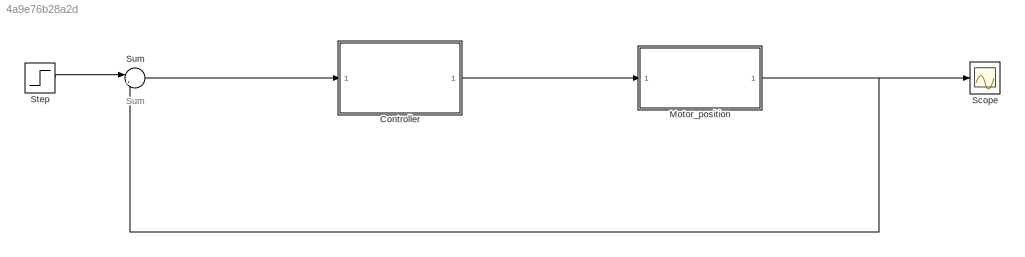
MODEL slx_4a9e76b28a2d
KIND model
CONFIG AbsTol = auto
CONFIG EnableMultiTasking = off
CONFIG FixedStep = auto
CONFIG MaxStep = auto
CONFIG MinStep = auto
CONFIG RelTol = 1e-3
CONFIG SampleTimeConstraint = Unconstrained
CONFIG Solver = ode45
CONFIG SolverName = ode45
CONFIG StartTime = 0.0
CONFIG StopTime = 10.0
WORKSPACE source: mxarray member
WORKSPACE J = 3.2284e-06
WORKSPACE K = 0.0274
WORKSPACE Kd = 0.15
WORKSPACE Ki = 500
WORKSPACE Kp = 21
WORKSPACE L = 2.75e-06
WORKSPACE R = 4
WORKSPACE b = 3.5077e-06
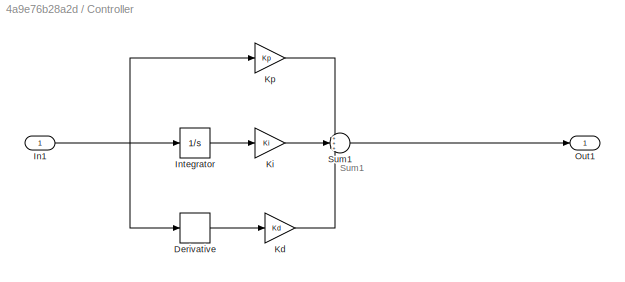
BLOCK [SubSystem] Controller
  Ports = [1, 1]
  RequestExecContextInheritance = off
BLOCK [Derivative] Controller/Derivative
BLOCK [Inport] Controller/In1
BLOCK [Integrator] Controller/Integrator
  Ports = [1, 1]
BLOCK [Gain] Controller/Kd
  Gain = Kd
BLOCK [Gain] Controller/Ki
  Gain = Ki
BLOCK [Gain] Controller/Kp
  Gain = Kp
BLOCK [Outport] Controller/Out1
BLOCK [Sum] Controller/Sum1
  Inputs = +++
  Ports = [3, 1]
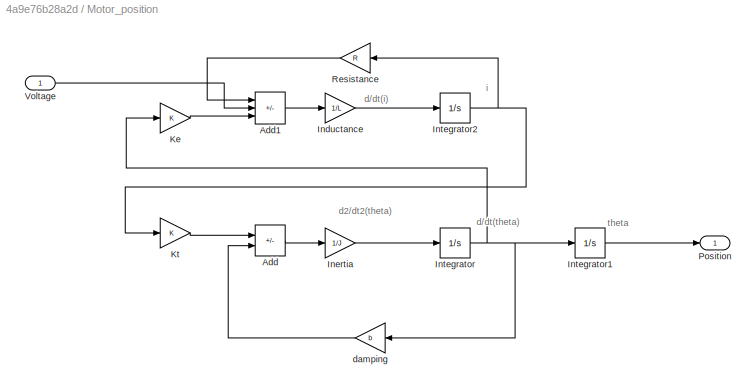
BLOCK [SubSystem] Motor_position
  Ports = [1, 1]
  RequestExecContextInheritance = off
BLOCK [Sum] Motor_position/Add
  IconShape = rectangular
  Inputs = +-
  Ports = [2, 1]
BLOCK [Sum] Motor_position/Add1
  IconShape = rectangular
  Inputs = -+-
  Ports = [3, 1]
BLOCK [Gain] Motor_position/Inductance
  Gain = 1/L
BLOCK [Gain] Motor_position/Inertia
  Gain = 1/J
BLOCK [Integrator] Motor_position/Integrator
  Ports = [1, 1]
BLOCK [Integrator] Motor_position/Integrator1
  Ports = [1, 1]
BLOCK [Integrator] Motor_position/Integrator2
  Ports = [1, 1]
BLOCK [Gain] Motor_position/Ke
  Gain = K
BLOCK [Gain] Motor_position/Kt
  Gain = K
BLOCK [Outport] Motor_position/Position
BLOCK [Gain] Motor_position/Resistance
  Gain = R
BLOCK [Inport] Motor_position/Voltage
BLOCK [Gain] Motor_position/damping
  Gain = b
BLOCK [Scope] Scope
  Floating = off
  NumInputPorts = 1
  Ports = [1]
  ScopeSpecificationString = Simulink.scopes.TimeScopeBlockCfg('CurrentConfiguration', extmgr.ConfigurationSet(extmgr.Configuration('Core','General UI',true),extmgr.Configuration('Core','Source UI',true),extmgr.Configuration('Sources','WiredSimulink',true),extmgr.Configuration('Visuals','Time Domain',true,'SerializedDisplays',{struct('MinYLimReal','-2130.84808','MaxYLimReal','19177.63273','YLabelReal','','MinYLimMag','  0.000...<+1385ch>
BLOCK [Step] Step
  SampleTime = 0
BLOCK [Sum] Sum
  Inputs = |+-
  Ports = [2, 1]
ANNOTATION (root): Sum
ANNOTATION Controller: Sum1
ANNOTATION Motor_position: d/dt(i)
ANNOTATION Motor_position: d/dt(theta)
ANNOTATION Motor_position: d2/dt2(theta)
ANNOTATION Motor_position: i
ANNOTATION Motor_position: theta
LINE Controller/Derivative:1 -> Controller/Kd:1
NET Controller/In1:1 -> Controller/Derivative:1, Controller/Integrator:1, Controller/Kp:1
LINE Controller/Integrator:1 -> Controller/Ki:1
LINE Controller/Kd:1 -> Controller/Sum1:3
LINE Controller/Ki:1 -> Controller/Sum1:2
LINE Controller/Kp:1 -> Controller/Sum1:1
LINE Controller/Sum1:1 -> Controller/Out1:1
LINE Controller:1 -> Motor_position:1
LINE Motor_position/Add1:1 -> Motor_position/Inductance:1
LINE Motor_position/Add:1 -> Motor_position/Inertia:1
LINE Motor_position/Inductance:1 -> Motor_position/Integrator2:1
LINE Motor_position/Inertia:1 -> Motor_position/Integrator:1
LINE Motor_position/Integrator1:1 -> Motor_position/Position:1
NET Motor_position/Integrator2:1 -> Motor_position/Kt:1, Motor_position/Resistance:1
NET Motor_position/Integrator:1 -> Motor_position/Integrator1:1, Motor_position/Ke:1, Motor_position/damping:1
LINE Motor_position/Ke:1 -> Motor_position/Add1:3
LINE Motor_position/Kt:1 -> Motor_position/Add:1
LINE Motor_position/Resistance:1 -> Motor_position/Add1:1
LINE Motor_position/Voltage:1 -> Motor_position/Add1:2
LINE Motor_position/damping:1 -> Motor_position/Add:2
NET Motor_position:1 -> Scope:1, Sum:2
LINE Step:1 -> Sum:1
LINE Sum:1 -> Controller:1
note: NET lines group one-source signal fan-out (src -> all destinations, sorted); 1:1 wires keep LINE
